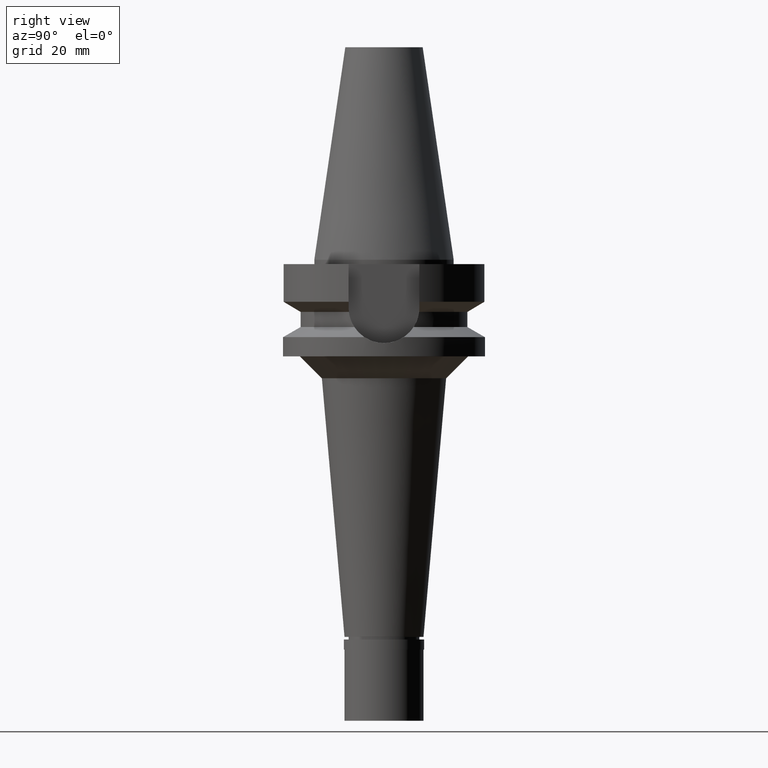
[diagram: clean part render]
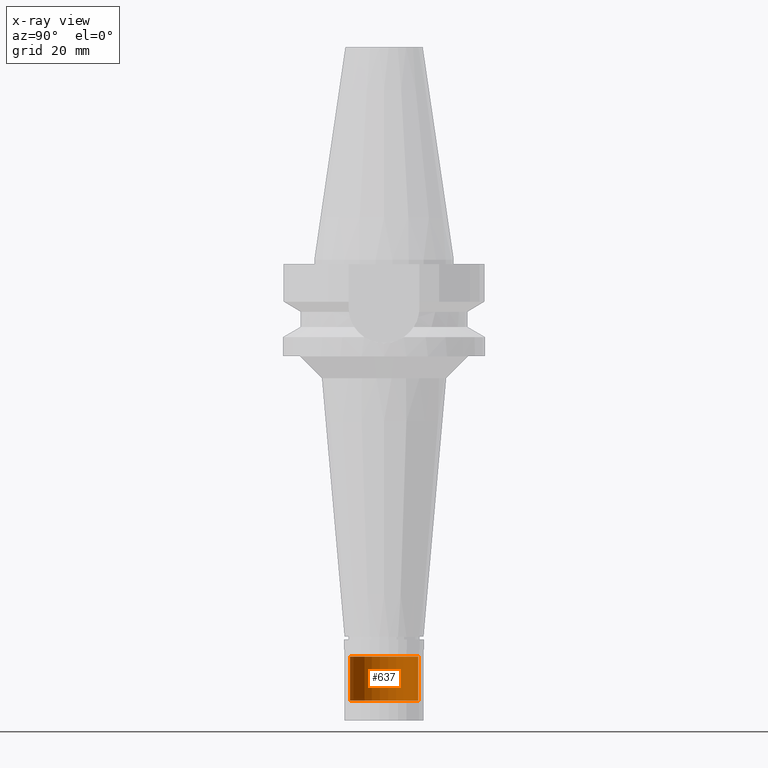
[diagram: x-ray — body ghosted, one internal face saturated and labeled with its STEP entity id]
A machine part, right view, then the same camera in x-ray: the body is ghosted and one INTERNAL B-rep face — a face not visible from any outside direction — is saturated and labeled: STEP entity #637.
In plain terms, the highlighted cylindrical surface (edge-blend (fillet) strip) has radius 7.8 mm, axis along (0, 0, -1).
Its self-contained STEP definition (entity closure, byte-faithful):
#72 = AXIS2_PLACEMENT_3D ( 'NONE', #998, #2417, #2858 ) ;
#130 = ORIENTED_EDGE ( 'NONE', *, *, #196, .T. ) ;
#157 = EDGE_LOOP ( 'NONE', ( #130, #180, #226, #1338 ) ) ;
#180 = ORIENTED_EDGE ( 'NONE', *, *, #2667, .F. ) ;
#196 = EDGE_CURVE ( 'NONE', #2904, #530, #217, .T. ) ;
#204 = CARTESIAN_POINT ( 'NONE',  ( 0.0000000000000000000, -7.799999999999999822, -100.4000000000000057 ) ) ;
#217 = CIRCLE ( 'NONE', #2331, 7.799999999999999822 ) ;
#226 = ORIENTED_EDGE ( 'NONE', *, *, #2062, .T. ) ;
#403 = DIRECTION ( 'NONE',  ( 0.0000000000000000000, 0.0000000000000000000, -1.000000000000000000 ) ) ;
#530 = VERTEX_POINT ( 'NONE', #204 ) ;
#618 = DIRECTION ( 'NONE',  ( 0.0000000000000000000, 0.0000000000000000000, -1.000000000000000000 ) ) ;
#637 = ADVANCED_FACE ( 'NONE', ( #1065 ), #2280, .T. ) ;
#654 = LINE ( 'NONE', #1367, #882 ) ;
#882 = VECTOR ( 'NONE', #403, 1000.000000000000000 ) ;
#904 = DIRECTION ( 'NONE',  ( 0.0000000000000000000, 1.000000000000000000, 0.0000000000000000000 ) ) ;
#977 = CARTESIAN_POINT ( 'NONE',  ( 0.0000000000000000000, -7.799999999999999822, -90.39999999999999147 ) ) ;
#998 = CARTESIAN_POINT ( 'NONE',  ( 0.0000000000000000000, 1.908489571790999955E-14, -90.39999999999999147 ) ) ;
#1013 = EDGE_CURVE ( 'NONE', #1782, #2904, #654, .T. ) ;
#1016 = VERTEX_POINT ( 'NONE', #977 ) ;
#1065 = FACE_OUTER_BOUND ( 'NONE', #157, .T. ) ;
#1338 = ORIENTED_EDGE ( 'NONE', *, *, #1013, .T. ) ;
#1367 = CARTESIAN_POINT ( 'NONE',  ( 0.0000000000000000000, 7.799999999999999822, -90.39999999999999147 ) ) ;
#1683 = CIRCLE ( 'NONE', #72, 7.799999999999999822 ) ;
#1782 = VERTEX_POINT ( 'NONE', #1814 ) ;
#1814 = CARTESIAN_POINT ( 'NONE',  ( 0.0000000000000000000, 7.799999999999999822, -90.39999999999999147 ) ) ;
#2030 = DIRECTION ( 'NONE',  ( 0.0000000000000000000, 0.0000000000000000000, 1.000000000000000000 ) ) ;
#2054 = VECTOR ( 'NONE', #2509, 1000.000000000000000 ) ;
#2062 = EDGE_CURVE ( 'NONE', #1016, #1782, #1683, .T. ) ;
#2130 = CARTESIAN_POINT ( 'NONE',  ( 0.0000000000000000000, 7.799999999999999822, -100.4000000000000057 ) ) ;
#2205 = CARTESIAN_POINT ( 'NONE',  ( 0.0000000000000000000, -7.799999999999999822, -90.39999999999999147 ) ) ;
#2280 = CYLINDRICAL_SURFACE ( 'NONE', #2894, 7.799999999999999822 ) ;
#2331 = AXIS2_PLACEMENT_3D ( 'NONE', #2499, #2030, #904 ) ;
#2417 = DIRECTION ( 'NONE',  ( 0.0000000000000000000, 0.0000000000000000000, -1.000000000000000000 ) ) ;
#2493 = DIRECTION ( 'NONE',  ( 0.0000000000000000000, -1.000000000000000000, 0.0000000000000000000 ) ) ;
#2499 = CARTESIAN_POINT ( 'NONE',  ( 0.0000000000000000000, 1.908489571790999955E-14, -100.4000000000000057 ) ) ;
#2509 = DIRECTION ( 'NONE',  ( 0.0000000000000000000, 0.0000000000000000000, -1.000000000000000000 ) ) ;
#2667 = EDGE_CURVE ( 'NONE', #1016, #530, #2867, .T. ) ;
#2858 = DIRECTION ( 'NONE',  ( 0.0000000000000000000, -1.000000000000000000, 0.0000000000000000000 ) ) ;
#2867 = LINE ( 'NONE', #2205, #2054 ) ;
#2894 = AXIS2_PLACEMENT_3D ( 'NONE', #2916, #618, #2493 ) ;
#2904 = VERTEX_POINT ( 'NONE', #2130 ) ;
#2916 = CARTESIAN_POINT ( 'NONE',  ( 0.0000000000000000000, 1.908489571790999955E-14, 55.84000000000000341 ) ) ;